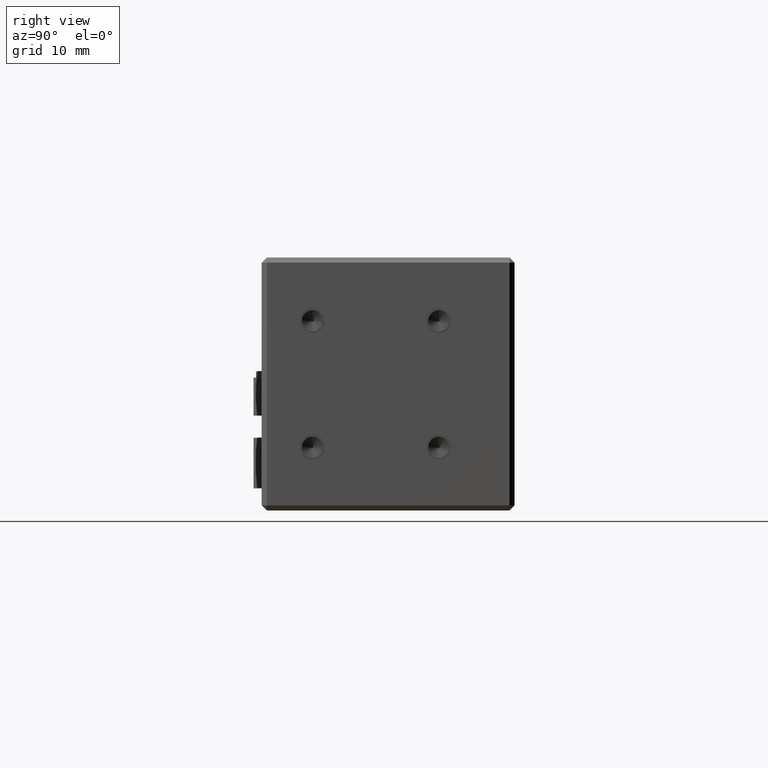
[diagram: clean part render]
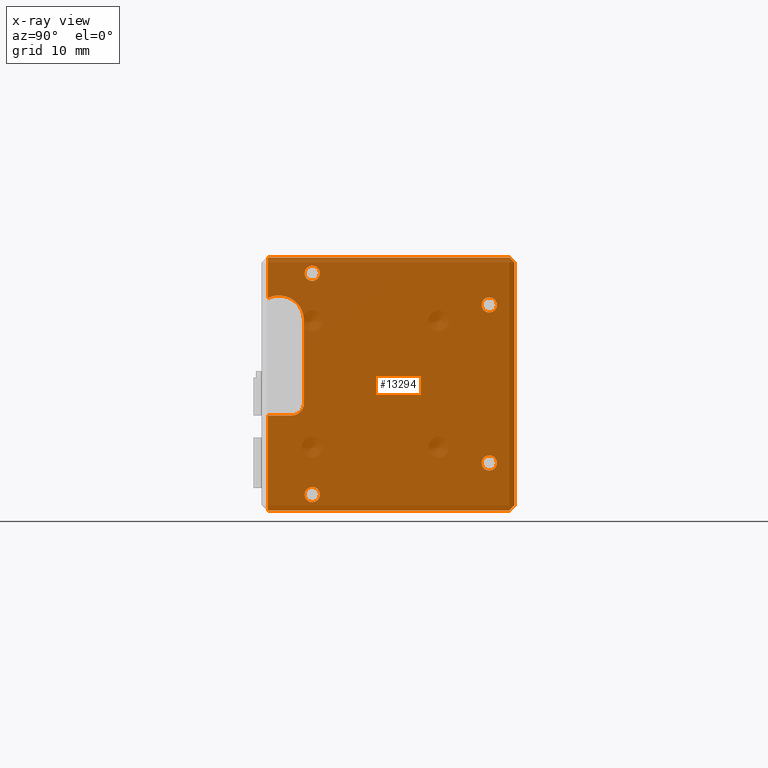
[diagram: x-ray — body ghosted, one internal face saturated and labeled with its STEP entity id]
A machine part, right view, then the same camera in x-ray: the body is ghosted and one INTERNAL B-rep face — a face not visible from any outside direction — is saturated and labeled: STEP entity #13294.
In plain terms, the highlighted planar face has unit normal (1, 0, -0).
Its self-contained STEP definition (entity closure, byte-faithful):
#229 = VERTEX_POINT ( 'NONE', #835 ) ;
#230 = EDGE_CURVE ( 'NONE', #32769, #3311, #985, .T. ) ;
#574 = CIRCLE ( 'NONE', #8798, 1.199999999999992600 ) ;
#707 = DIRECTION ( 'NONE',  ( 0.0000000000000000000, -1.807003620809185200E-016, 1.000000000000000000 ) ) ;
#748 = EDGE_CURVE ( 'NONE', #5166, #229, #26257, .T. ) ;
#774 = AXIS2_PLACEMENT_3D ( 'NONE', #1466, #19968, #4074 ) ;
#835 = CARTESIAN_POINT ( 'NONE',  ( -41.23777979801199900, -0.1186139775399249200, 17.00000000000955700 ) ) ;
#985 = CIRCLE ( 'NONE', #12059, 1.199999999999992600 ) ;
#1205 = VERTEX_POINT ( 'NONE', #6154 ) ;
#1351 = CARTESIAN_POINT ( 'NONE',  ( -41.23777979801199900, -5.818613977539921000, 9.534040223968531800E-012 ) ) ;
#1466 = CARTESIAN_POINT ( 'NONE',  ( -41.23777979801199900, -4.118613977539926200, 30.00000000000953200 ) ) ;
#2156 = ORIENTED_EDGE ( 'NONE', *, *, #30952, .T. ) ;
#2274 = CIRCLE ( 'NONE', #26809, 1.199999999999992600 ) ;
#2446 = VECTOR ( 'NONE', #5048, 1000.000000000000000 ) ;
#2619 = VERTEX_POINT ( 'NONE', #29896 ) ;
#2624 = EDGE_CURVE ( 'NONE', #8020, #30439, #19321, .T. ) ;
#2924 = EDGE_CURVE ( 'NONE', #3311, #32769, #5575, .T. ) ;
#3008 = EDGE_CURVE ( 'NONE', #31498, #7392, #2274, .T. ) ;
#3053 = DIRECTION ( 'NONE',  ( -1.000000000000000000, -1.942890293094023500E-016, 1.301620591984824700E-017 ) ) ;
#3311 = VERTEX_POINT ( 'NONE', #29793 ) ;
#3449 = CARTESIAN_POINT ( 'NONE',  ( -41.23777979801199900, -2.118613977539930600, 15.00000000000955000 ) ) ;
#3721 = CARTESIAN_POINT ( 'NONE',  ( -41.23777979801200600, 33.18138602246008200, 15.00000000000955700 ) ) ;
#4074 = DIRECTION ( 'NONE',  ( 0.0000000000000000000, 2.168404344971008900E-016, -1.000000000000000000 ) ) ;
#4192 = LINE ( 'NONE', #26698, #11216 ) ;
#4277 = VECTOR ( 'NONE', #22281, 1000.000000000000000 ) ;
#4359 = ORIENTED_EDGE ( 'NONE', *, *, #22964, .T. ) ;
#4442 = CARTESIAN_POINT ( 'NONE',  ( -41.23777979801200600, 29.18138602246007500, 32.50000000000954300 ) ) ;
#4513 = DIRECTION ( 'NONE',  ( -1.000000000000000000, -1.942890293094023500E-016, 1.301620591984824700E-017 ) ) ;
#4690 = EDGE_LOOP ( 'NONE', ( #2156, #22683 ) ) ;
#5048 = DIRECTION ( 'NONE',  ( 1.301620591984827800E-017, -1.578598363138894200E-016, 1.000000000000000000 ) ) ;
#5166 = VERTEX_POINT ( 'NONE', #6933 ) ;
#5293 = CIRCLE ( 'NONE', #14598, 1.199999999999993100 ) ;
#5458 = EDGE_CURVE ( 'NONE', #7392, #31498, #33297, .T. ) ;
#5466 = AXIS2_PLACEMENT_3D ( 'NONE', #7632, #26181, #10278 ) ;
#5575 = CIRCLE ( 'NONE', #5466, 1.199999999999992600 ) ;
#5647 = CARTESIAN_POINT ( 'NONE',  ( -41.23777979801200600, 33.18138602246006700, 40.00000000000954300 ) ) ;
#6133 = ORIENTED_EDGE ( 'NONE', *, *, #18397, .T. ) ;
#6154 = CARTESIAN_POINT ( 'NONE',  ( -41.23777979801200600, 29.18138602246007500, 31.30000000000955000 ) ) ;
#6640 = EDGE_CURVE ( 'NONE', #17994, #27152, #29821, .T. ) ;
#6694 = ORIENTED_EDGE ( 'NONE', *, *, #30129, .T. ) ;
#6933 = CARTESIAN_POINT ( 'NONE',  ( -41.23777979801199900, -0.1186139775399266700, 30.00000000000953900 ) ) ;
#7076 = CIRCLE ( 'NONE', #31061, 2.000000000000001800 ) ;
#7138 = DIRECTION ( 'NONE',  ( 0.0000000000000000000, 0.0000000000000000000, 1.000000000000000000 ) ) ;
#7158 = LINE ( 'NONE', #5647, #14210 ) ;
#7392 = VERTEX_POINT ( 'NONE', #11750 ) ;
#7533 = ORIENTED_EDGE ( 'NONE', *, *, #25215, .T. ) ;
#7632 = CARTESIAN_POINT ( 'NONE',  ( -41.23777979801200600, 29.18138602246008200, 7.500000000009539000 ) ) ;
#7982 = CIRCLE ( 'NONE', #30968, 1.199999999999993100 ) ;
#7994 = LINE ( 'NONE', #3721, #4277 ) ;
#8020 = VERTEX_POINT ( 'NONE', #15220 ) ;
#8136 = DIRECTION ( 'NONE',  ( -1.281792426635850800E-016, 0.7071067811865474600, 0.7071067811865476800 ) ) ;
#8725 = ORIENTED_EDGE ( 'NONE', *, *, #5458, .T. ) ;
#8798 = AXIS2_PLACEMENT_3D ( 'NONE', #4442, #22995, #7138 ) ;
#8960 = EDGE_CURVE ( 'NONE', #28023, #2619, #7994, .T. ) ;
#9321 = ORIENTED_EDGE ( 'NONE', *, *, #23656, .T. ) ;
#9784 = CARTESIAN_POINT ( 'NONE',  ( -41.23777979801199900, -5.818613977539921000, 9.534040223968531800E-012 ) ) ;
#9979 = CARTESIAN_POINT ( 'NONE',  ( -41.23777979801200600, 33.18138602246006700, 39.20000000000953800 ) ) ;
#9980 = EDGE_CURVE ( 'NONE', #30439, #5166, #33290, .T. ) ;
#10083 = CARTESIAN_POINT ( 'NONE',  ( -41.23777979801200600, 29.18138602246007500, 32.50000000000954300 ) ) ;
#10278 = DIRECTION ( 'NONE',  ( 0.0000000000000000000, 0.0000000000000000000, 1.000000000000000000 ) ) ;
#10687 = PLANE ( 'NONE',  #17188 ) ;
#10924 = DIRECTION ( 'NONE',  ( 1.000000000000000000, 1.942890293094023500E-016, -1.301620591984824700E-017 ) ) ;
#11056 = ORIENTED_EDGE ( 'NONE', *, *, #9980, .T. ) ;
#11146 = CARTESIAN_POINT ( 'NONE',  ( -41.23777979801199900, 1.181386022460057400, 38.70000000000954500 ) ) ;
#11216 = VECTOR ( 'NONE', #8136, 1000.000000000000000 ) ;
#11354 = CARTESIAN_POINT ( 'NONE',  ( -41.23777979801199900, -2.118613977539924000, 17.00000000000955000 ) ) ;
#11750 = CARTESIAN_POINT ( 'NONE',  ( -41.23777979801199900, 1.181386022460057600, 36.30000000000956100 ) ) ;
#11764 = FACE_BOUND ( 'NONE', #33358, .T. ) ;
#12059 = AXIS2_PLACEMENT_3D ( 'NONE', #14149, #32714, #16800 ) ;
#12243 = VECTOR ( 'NONE', #16694, 1000.000000000000000 ) ;
#12318 = VERTEX_POINT ( 'NONE', #28885 ) ;
#12650 = LINE ( 'NONE', #9784, #33056 ) ;
#12699 = DIRECTION ( 'NONE',  ( 0.0000000000000000000, 0.0000000000000000000, 1.000000000000000000 ) ) ;
#12739 = CARTESIAN_POINT ( 'NONE',  ( -41.23777979801200600, 33.18138602246006700, 39.20000000000953800 ) ) ;
#13274 = DIRECTION ( 'NONE',  ( -1.000000000000000000, -1.942890293094023500E-016, 1.301620591984824700E-017 ) ) ;
#13294 = ADVANCED_FACE ( 'NONE', ( #32144, #25083, #25916, #11764, #18044 ), #10687, .T. ) ;
#14031 = CARTESIAN_POINT ( 'NONE',  ( -41.23777979801199900, -5.818613977539921000, 9.534040223968531800E-012 ) ) ;
#14046 = DIRECTION ( 'NONE',  ( 0.0000000000000000000, -2.168404344971006900E-016, 1.000000000000000000 ) ) ;
#14149 = CARTESIAN_POINT ( 'NONE',  ( -41.23777979801200600, 29.18138602246008200, 7.500000000009539000 ) ) ;
#14210 = VECTOR ( 'NONE', #21554, 1000.000000000000000 ) ;
#14223 = DIRECTION ( 'NONE',  ( -1.301620591984827800E-017, 1.578598363138894200E-016, -1.000000000000000000 ) ) ;
#14598 = AXIS2_PLACEMENT_3D ( 'NONE', #20432, #4513, #23066 ) ;
#15220 = CARTESIAN_POINT ( 'NONE',  ( -41.23777979801199900, -5.818613977539927300, 40.00000000000953500 ) ) ;
#15846 = ORIENTED_EDGE ( 'NONE', *, *, #19282, .T. ) ;
#16540 = DIRECTION ( 'NONE',  ( -1.000000000000000000, -1.942890293094023500E-016, 1.301620591984824700E-017 ) ) ;
#16694 = DIRECTION ( 'NONE',  ( -1.301620591984827800E-017, 1.578598363138894200E-016, -1.000000000000000000 ) ) ;
#16800 = DIRECTION ( 'NONE',  ( 0.0000000000000000000, 0.0000000000000000000, 1.000000000000000000 ) ) ;
#16957 = CARTESIAN_POINT ( 'NONE',  ( -41.23777979801199900, 1.181386022460057400, 3.700000000009543200 ) ) ;
#16974 = CARTESIAN_POINT ( 'NONE',  ( -41.23777979801200600, 33.18138602246008200, 9.540196757584773500E-012 ) ) ;
#17182 = VERTEX_POINT ( 'NONE', #1351 ) ;
#17188 = AXIS2_PLACEMENT_3D ( 'NONE', #26827, #10924, #29507 ) ;
#17502 = CARTESIAN_POINT ( 'NONE',  ( -41.23777979801200600, 29.18138602246008200, 6.300000000009546000 ) ) ;
#17891 = CIRCLE ( 'NONE', #27663, 1.199999999999992600 ) ;
#17994 = VERTEX_POINT ( 'NONE', #23602 ) ;
#18044 = FACE_BOUND ( 'NONE', #30548, .T. ) ;
#18397 = EDGE_CURVE ( 'NONE', #2619, #17182, #12650, .T. ) ;
#18946 = CARTESIAN_POINT ( 'NONE',  ( -41.23777979801199900, 1.181386022460057600, 2.500000000009550100 ) ) ;
#19282 = EDGE_CURVE ( 'NONE', #27152, #23736, #21605, .T. ) ;
#19321 = LINE ( 'NONE', #14031, #12243 ) ;
#19968 = DIRECTION ( 'NONE',  ( -1.000000000000000000, -1.942890293094023500E-016, 1.301620591984824700E-017 ) ) ;
#20297 = ORIENTED_EDGE ( 'NONE', *, *, #27719, .T. ) ;
#20432 = CARTESIAN_POINT ( 'NONE',  ( -41.23777979801199900, 1.181386022460057600, 2.500000000009550100 ) ) ;
#20775 = VECTOR ( 'NONE', #24976, 1000.000000000000000 ) ;
#20783 = VECTOR ( 'NONE', #28723, 1000.000000000000000 ) ;
#20927 = CARTESIAN_POINT ( 'NONE',  ( -41.23777979801199900, -5.818613977539926400, 33.62077339805586700 ) ) ;
#21554 = DIRECTION ( 'NONE',  ( 1.942890293094023500E-016, -1.000000000000000000, -1.578598363138894200E-016 ) ) ;
#21605 = LINE ( 'NONE', #12739, #20783 ) ;
#21622 = DIRECTION ( 'NONE',  ( 0.0000000000000000000, -1.807003620809184500E-016, 1.000000000000000000 ) ) ;
#21707 = EDGE_LOOP ( 'NONE', ( #11056, #34095, #9321, #26118, #6133, #6694, #7533, #33840, #15846, #28861, #31552 ) ) ;
#22153 = CARTESIAN_POINT ( 'NONE',  ( -41.23777979801200600, 32.38138602246007000, 40.00000000000954300 ) ) ;
#22281 = DIRECTION ( 'NONE',  ( 1.942890293094023500E-016, -1.000000000000000000, -1.578598363138894200E-016 ) ) ;
#22683 = ORIENTED_EDGE ( 'NONE', *, *, #26729, .T. ) ;
#22964 = EDGE_CURVE ( 'NONE', #33212, #1205, #574, .T. ) ;
#22995 = DIRECTION ( 'NONE',  ( -1.000000000000000000, -1.942890293094023500E-016, 1.301620591984824700E-017 ) ) ;
#23066 = DIRECTION ( 'NONE',  ( 0.0000000000000000000, -1.807003620809184500E-016, 1.000000000000000000 ) ) ;
#23602 = CARTESIAN_POINT ( 'NONE',  ( -41.23777979801200600, 33.18138602246008200, 0.8000000000095423000 ) ) ;
#23656 = EDGE_CURVE ( 'NONE', #229, #28023, #7076, .T. ) ;
#23736 = VERTEX_POINT ( 'NONE', #22153 ) ;
#24498 = CARTESIAN_POINT ( 'NONE',  ( -41.23777979801200600, 29.18138602246007500, 33.70000000000953800 ) ) ;
#24976 = DIRECTION ( 'NONE',  ( -1.942890293094023500E-016, 1.000000000000000000, 1.578598363138894200E-016 ) ) ;
#25083 = FACE_BOUND ( 'NONE', #4690, .T. ) ;
#25130 = AXIS2_PLACEMENT_3D ( 'NONE', #32458, #16540, #707 ) ;
#25215 = EDGE_CURVE ( 'NONE', #29960, #17994, #4192, .T. ) ;
#25705 = DIRECTION ( 'NONE',  ( -1.301620591984827800E-017, 1.578598363138894200E-016, -1.000000000000000000 ) ) ;
#25916 = FACE_BOUND ( 'NONE', #26305, .T. ) ;
#26118 = ORIENTED_EDGE ( 'NONE', *, *, #8960, .T. ) ;
#26181 = DIRECTION ( 'NONE',  ( -1.000000000000000000, -1.942890293094023500E-016, 1.301620591984824700E-017 ) ) ;
#26257 = LINE ( 'NONE', #30069, #32490 ) ;
#26305 = EDGE_LOOP ( 'NONE', ( #34356, #8725 ) ) ;
#26698 = CARTESIAN_POINT ( 'NONE',  ( -41.23777979801200600, 32.38138602246007000, 9.540070469715722700E-012 ) ) ;
#26729 = EDGE_CURVE ( 'NONE', #12318, #26888, #7982, .T. ) ;
#26809 = AXIS2_PLACEMENT_3D ( 'NONE', #29212, #13274, #31856 ) ;
#26827 = CARTESIAN_POINT ( 'NONE',  ( -41.23777979801200600, 33.18138602246008200, 9.540196757584773500E-012 ) ) ;
#26888 = VERTEX_POINT ( 'NONE', #16957 ) ;
#27152 = VERTEX_POINT ( 'NONE', #9979 ) ;
#27663 = AXIS2_PLACEMENT_3D ( 'NONE', #10083, #28683, #12699 ) ;
#27719 = EDGE_CURVE ( 'NONE', #1205, #33212, #17891, .T. ) ;
#28023 = VERTEX_POINT ( 'NONE', #3449 ) ;
#28548 = ORIENTED_EDGE ( 'NONE', *, *, #2924, .T. ) ;
#28683 = DIRECTION ( 'NONE',  ( -1.000000000000000000, -1.942890293094023500E-016, 1.301620591984824700E-017 ) ) ;
#28696 = LINE ( 'NONE', #16974, #20775 ) ;
#28723 = DIRECTION ( 'NONE',  ( 1.465869376060755000E-016, -0.7071067811865476800, 0.7071067811865474600 ) ) ;
#28861 = ORIENTED_EDGE ( 'NONE', *, *, #32496, .T. ) ;
#28885 = CARTESIAN_POINT ( 'NONE',  ( -41.23777979801199900, 1.181386022460057600, 1.300000000009557100 ) ) ;
#29212 = CARTESIAN_POINT ( 'NONE',  ( -41.23777979801199900, 1.181386022460057600, 37.50000000000955700 ) ) ;
#29507 = DIRECTION ( 'NONE',  ( -1.301620591984827800E-017, 1.578598363138894200E-016, -1.000000000000000000 ) ) ;
#29793 = CARTESIAN_POINT ( 'NONE',  ( -41.23777979801200600, 29.18138602246008200, 8.700000000009531200 ) ) ;
#29821 = LINE ( 'NONE', #33328, #2446 ) ;
#29892 = ORIENTED_EDGE ( 'NONE', *, *, #230, .T. ) ;
#29896 = CARTESIAN_POINT ( 'NONE',  ( -41.23777979801199900, -5.818613977539923700, 15.00000000000955000 ) ) ;
#29907 = DIRECTION ( 'NONE',  ( -1.000000000000000000, -1.942890293094023500E-016, 1.301620591984824700E-017 ) ) ;
#29960 = VERTEX_POINT ( 'NONE', #32312 ) ;
#30069 = CARTESIAN_POINT ( 'NONE',  ( -41.23777979801199900, -0.1186139775399240600, 9.534940025035519700E-012 ) ) ;
#30129 = EDGE_CURVE ( 'NONE', #17182, #29960, #28696, .T. ) ;
#30439 = VERTEX_POINT ( 'NONE', #20927 ) ;
#30548 = EDGE_LOOP ( 'NONE', ( #28548, #29892 ) ) ;
#30952 = EDGE_CURVE ( 'NONE', #26888, #12318, #5293, .T. ) ;
#30968 = AXIS2_PLACEMENT_3D ( 'NONE', #18946, #3053, #21622 ) ;
#31061 = AXIS2_PLACEMENT_3D ( 'NONE', #11354, #29907, #14046 ) ;
#31498 = VERTEX_POINT ( 'NONE', #11146 ) ;
#31552 = ORIENTED_EDGE ( 'NONE', *, *, #2624, .T. ) ;
#31856 = DIRECTION ( 'NONE',  ( 0.0000000000000000000, -1.807003620809185200E-016, 1.000000000000000000 ) ) ;
#32144 = FACE_OUTER_BOUND ( 'NONE', #21707, .T. ) ;
#32312 = CARTESIAN_POINT ( 'NONE',  ( -41.23777979801200600, 32.38138602246007000, 9.539906145323955400E-012 ) ) ;
#32458 = CARTESIAN_POINT ( 'NONE',  ( -41.23777979801199900, 1.181386022460057600, 37.50000000000955700 ) ) ;
#32490 = VECTOR ( 'NONE', #14223, 1000.000000000000000 ) ;
#32496 = EDGE_CURVE ( 'NONE', #23736, #8020, #7158, .T. ) ;
#32714 = DIRECTION ( 'NONE',  ( -1.000000000000000000, -1.942890293094023500E-016, 1.301620591984824700E-017 ) ) ;
#32769 = VERTEX_POINT ( 'NONE', #17502 ) ;
#33056 = VECTOR ( 'NONE', #25705, 1000.000000000000000 ) ;
#33212 = VERTEX_POINT ( 'NONE', #24498 ) ;
#33290 = CIRCLE ( 'NONE', #774, 4.000000000000000000 ) ;
#33297 = CIRCLE ( 'NONE', #25130, 1.199999999999992600 ) ;
#33328 = CARTESIAN_POINT ( 'NONE',  ( -41.23777979801200600, 33.18138602246008200, 9.540196757584773500E-012 ) ) ;
#33358 = EDGE_LOOP ( 'NONE', ( #4359, #20297 ) ) ;
#33840 = ORIENTED_EDGE ( 'NONE', *, *, #6640, .T. ) ;
#34095 = ORIENTED_EDGE ( 'NONE', *, *, #748, .T. ) ;
#34356 = ORIENTED_EDGE ( 'NONE', *, *, #3008, .T. ) ;